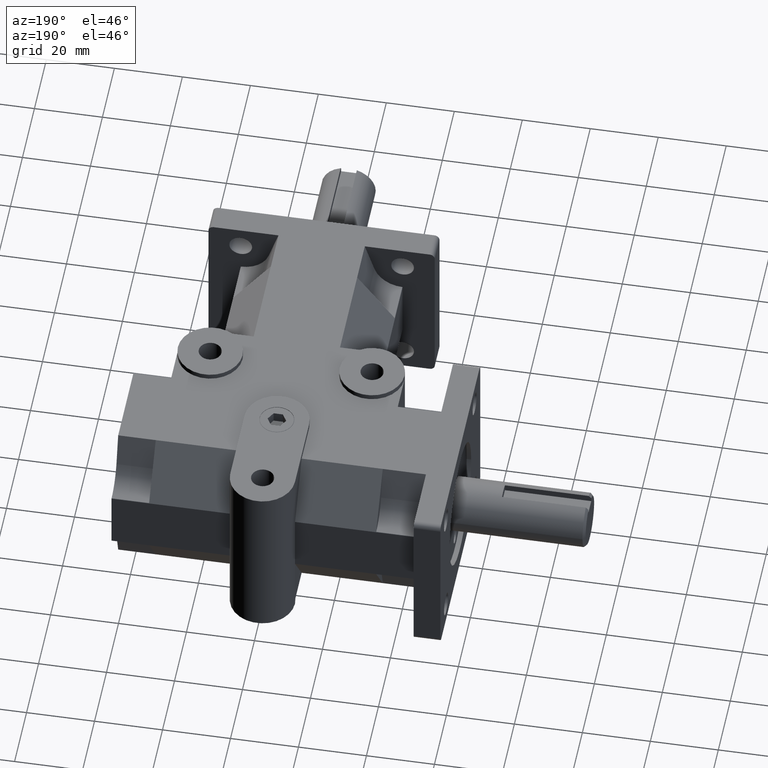
[diagram: clean part render]
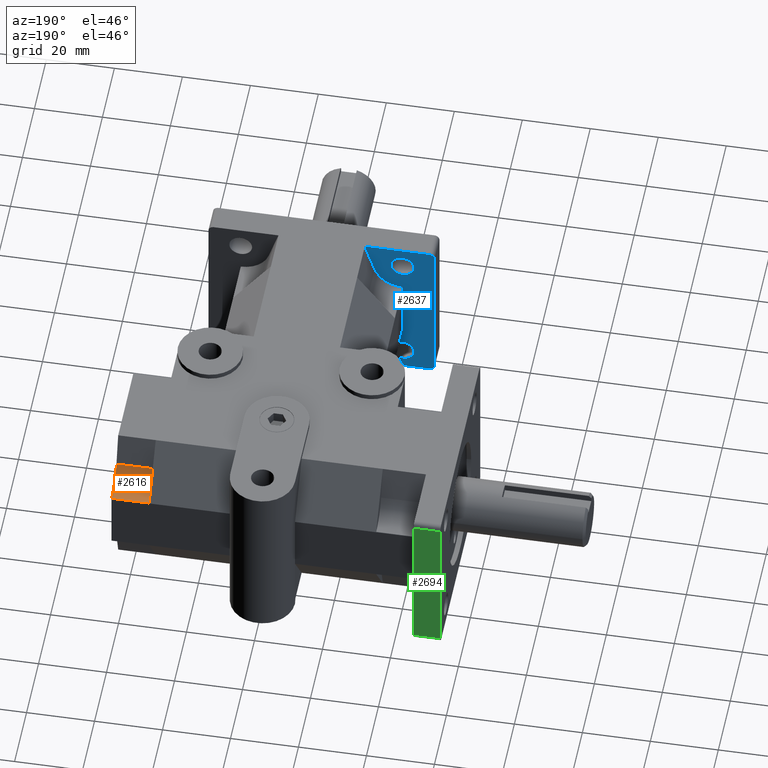
[diagram: same view with three faces highlighted in distinct colors, each labeled with its STEP entity id]
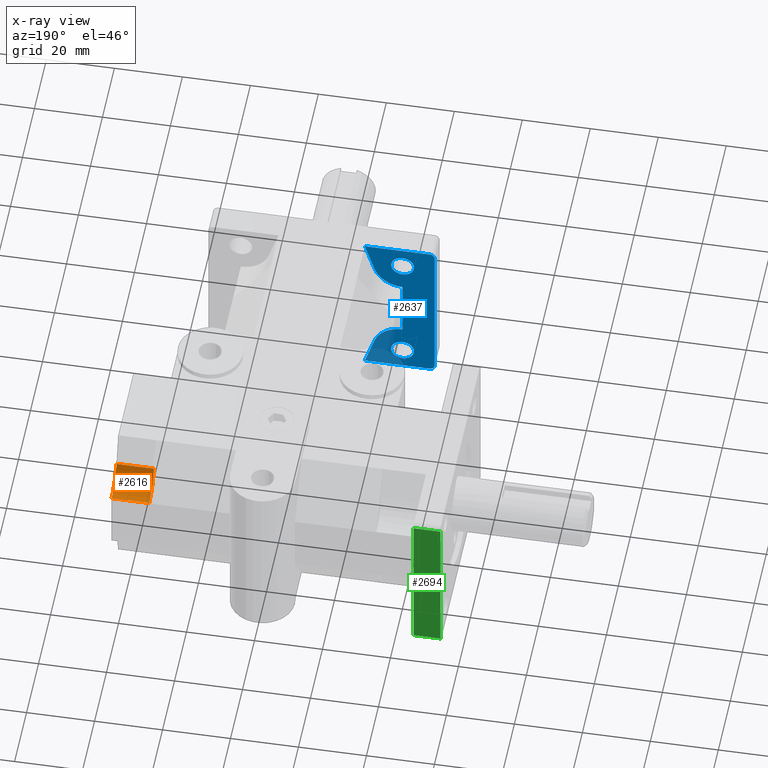
[diagram: x-ray of the same camera — body ghosted, the three highlighted faces saturated]
A machine part, auxiliary view with three faces highlighted in distinct colors.
The next image is the same camera in x-ray (body ghosted, the three faces saturated) — at least one of them is partly hidden behind the body in this view.
Their STEP definitions:

[orange] entity #2616 — the highlighted cylindrical surface (edge-blend (fillet) strip) has radius 8.636 mm, axis along (-1, 0, 0).
#223=FACE_OUTER_BOUND('',#399,.T.);
#399=EDGE_LOOP('',(#2094,#2095,#2096,#2097));
#640=LINE('',#4208,#905);
#641=LINE('',#4211,#906);
#905=VECTOR('',#3402,1.);
#906=VECTOR('',#3405,1.);
#1084=CIRCLE('',#2818,0.34);
#1095=CIRCLE('',#2854,0.34);
#1258=VERTEX_POINT('',#4085);
#1259=VERTEX_POINT('',#4087);
#1293=VERTEX_POINT('',#4207);
#1294=VERTEX_POINT('',#4209);
#1532=EDGE_CURVE('',#1259,#1258,#1084,.T.);
#1593=EDGE_CURVE('',#1293,#1258,#640,.T.);
#1594=EDGE_CURVE('',#1294,#1293,#1095,.T.);
#1595=EDGE_CURVE('',#1259,#1294,#641,.T.);
#2094=ORIENTED_EDGE('',*,*,#1532,.T.);
#2095=ORIENTED_EDGE('',*,*,#1593,.F.);
#2096=ORIENTED_EDGE('',*,*,#1594,.F.);
#2097=ORIENTED_EDGE('',*,*,#1595,.F.);
#2527=CYLINDRICAL_SURFACE('',#2853,0.34);
#2616=ADVANCED_FACE('',(#223),#2527,.F.);
#2818=AXIS2_PLACEMENT_3D('',#4088,#3280,#3281);
#2853=AXIS2_PLACEMENT_3D('',#4206,#3400,#3401);
#2854=AXIS2_PLACEMENT_3D('',#4210,#3403,#3404);
#3280=DIRECTION('center_axis',(1.,0.,0.));
#3281=DIRECTION('ref_axis',(0.,1.,0.));
#3400=DIRECTION('center_axis',(-1.,6.12303176911189E-17,0.));
#3401=DIRECTION('ref_axis',(6.12303176911189E-17,1.,0.));
#3402=DIRECTION('',(1.,-6.12303176911189E-17,0.));
#3403=DIRECTION('center_axis',(1.,-6.12303176911189E-17,0.));
#3404=DIRECTION('ref_axis',(6.12303176911189E-17,1.,0.));
#3405=DIRECTION('',(-1.,6.12303176911189E-17,0.));
#4085=CARTESIAN_POINT('',(1.75,4.18472851878482,0.347511295934889));
#4087=CARTESIAN_POINT('',(1.75,3.86381314304598,0.583448000330468));
#4088=CARTESIAN_POINT('Origin',(1.75,4.1875,0.6875));
#4206=CARTESIAN_POINT('Origin',(1.815,4.1875,0.6875));
#4207=CARTESIAN_POINT('',(1.315,4.18472851878482,0.347511295934889));
#4208=CARTESIAN_POINT('',(1.815,4.18472851878482,0.347511295934889));
#4209=CARTESIAN_POINT('',(1.315,3.86381314304598,0.583448000330468));
#4210=CARTESIAN_POINT('Origin',(1.315,4.1875,0.6875));
#4211=CARTESIAN_POINT('',(1.815,3.86381314304598,0.583448000330468));

[blue] entity #2637 — the highlighted planar face has unit normal (0, 1, 0).
#48=FACE_BOUND('',#421,.T.);
#49=FACE_BOUND('',#422,.T.);
#113=PLANE('',#2882);
#244=FACE_OUTER_BOUND('',#420,.T.);
#420=EDGE_LOOP('',(#2175,#2176,#2177,#2178,#2179,#2180,#2181,#2182,#2183,
#2184,#2185,#2186));
#421=EDGE_LOOP('',(#2187));
#422=EDGE_LOOP('',(#2188));
#555=LINE('',#4002,#820);
#658=LINE('',#4256,#923);
#663=LINE('',#4265,#928);
#672=LINE('',#4289,#937);
#674=LINE('',#4293,#939);
#675=LINE('',#4294,#940);
#676=LINE('',#4296,#941);
#677=LINE('',#4297,#942);
#820=VECTOR('',#3209,1.);
#923=VECTOR('',#3456,1.);
#928=VECTOR('',#3463,1.);
#937=VECTOR('',#3488,0.999999999999999);
#939=VECTOR('',#3494,1.);
#940=VECTOR('',#3495,1.);
#941=VECTOR('',#3496,1.);
#942=VECTOR('',#3497,1.);
#1051=CIRCLE('',#2766,0.06);
#1053=CIRCLE('',#2769,0.06);
#1099=CIRCLE('',#2870,0.34);
#1102=CIRCLE('',#2879,0.34);
#1103=CIRCLE('',#2883,0.1325);
#1104=CIRCLE('',#2884,0.1325);
#1168=VERTEX_POINT('',#3863);
#1169=VERTEX_POINT('',#3865);
#1172=VERTEX_POINT('',#3872);
#1173=VERTEX_POINT('',#3874);
#1226=VERTEX_POINT('',#4001);
#1303=VERTEX_POINT('',#4249);
#1304=VERTEX_POINT('',#4251);
#1305=VERTEX_POINT('',#4255);
#1308=VERTEX_POINT('',#4263);
#1313=VERTEX_POINT('',#4280);
#1315=VERTEX_POINT('',#4284);
#1316=VERTEX_POINT('',#4295);
#1317=VERTEX_POINT('',#4298);
#1318=VERTEX_POINT('',#4300);
#1419=EDGE_CURVE('',#1168,#1169,#1051,.T.);
#1423=EDGE_CURVE('',#1172,#1173,#1053,.T.);
#1490=EDGE_CURVE('',#1226,#1169,#555,.T.);
#1614=EDGE_CURVE('',#1303,#1304,#1099,.T.);
#1616=EDGE_CURVE('',#1304,#1305,#658,.T.);
#1621=EDGE_CURVE('',#1308,#1303,#663,.F.);
#1631=EDGE_CURVE('',#1313,#1315,#1102,.T.);
#1633=EDGE_CURVE('',#1315,#1226,#672,.T.);
#1635=EDGE_CURVE('',#1173,#1168,#674,.T.);
#1636=EDGE_CURVE('',#1172,#1305,#675,.T.);
#1637=EDGE_CURVE('',#1308,#1316,#676,.T.);
#1638=EDGE_CURVE('',#1313,#1316,#677,.F.);
#1639=EDGE_CURVE('',#1317,#1317,#1103,.T.);
#1640=EDGE_CURVE('',#1318,#1318,#1104,.T.);
#2175=ORIENTED_EDGE('',*,*,#1419,.F.);
#2176=ORIENTED_EDGE('',*,*,#1635,.F.);
#2177=ORIENTED_EDGE('',*,*,#1423,.F.);
#2178=ORIENTED_EDGE('',*,*,#1636,.T.);
#2179=ORIENTED_EDGE('',*,*,#1616,.F.);
#2180=ORIENTED_EDGE('',*,*,#1614,.F.);
#2181=ORIENTED_EDGE('',*,*,#1621,.F.);
#2182=ORIENTED_EDGE('',*,*,#1637,.T.);
#2183=ORIENTED_EDGE('',*,*,#1638,.F.);
#2184=ORIENTED_EDGE('',*,*,#1631,.T.);
#2185=ORIENTED_EDGE('',*,*,#1633,.T.);
#2186=ORIENTED_EDGE('',*,*,#1490,.T.);
#2187=ORIENTED_EDGE('',*,*,#1639,.T.);
#2188=ORIENTED_EDGE('',*,*,#1640,.T.);
#2637=ADVANCED_FACE('',(#244,#48,#49),#113,.T.);
#2766=AXIS2_PLACEMENT_3D('',#3866,#3096,#3097);
#2769=AXIS2_PLACEMENT_3D('',#3875,#3104,#3105);
#2870=AXIS2_PLACEMENT_3D('',#4252,#3451,#3452);
#2879=AXIS2_PLACEMENT_3D('',#4286,#3483,#3484);
#2882=AXIS2_PLACEMENT_3D('',#4292,#3492,#3493);
#2883=AXIS2_PLACEMENT_3D('',#4299,#3498,#3499);
#2884=AXIS2_PLACEMENT_3D('',#4301,#3500,#3501);
#3096=DIRECTION('center_axis',(0.,-1.,0.));
#3097=DIRECTION('ref_axis',(-0.707106781186548,0.,-0.707106781186548));
#3104=DIRECTION('center_axis',(0.,-1.,0.));
#3105=DIRECTION('ref_axis',(-0.707106781186548,0.,0.707106781186548));
#3209=DIRECTION('',(-1.,0.,0.));
#3451=DIRECTION('center_axis',(0.,-1.,0.));
#3452=DIRECTION('ref_axis',(1.,0.,0.));
#3456=DIRECTION('',(0.306035293145686,0.,0.95202016751182));
#3463=DIRECTION('',(-0.59319903804985,0.,-0.805055837353368));
#3483=DIRECTION('center_axis',(0.,1.,0.));
#3484=DIRECTION('ref_axis',(1.,0.,0.));
#3488=DIRECTION('',(0.306035293145685,0.,-0.952020167511821));
#3492=DIRECTION('center_axis',(0.,1.,0.));
#3493=DIRECTION('ref_axis',(0.,0.,-1.));
#3494=DIRECTION('',(0.,0.,-1.));
#3495=DIRECTION('',(1.,0.,0.));
#3496=DIRECTION('',(0.,0.,-1.));
#3497=DIRECTION('',(0.59319903804985,0.,-0.805055837353368));
#3498=DIRECTION('center_axis',(0.,-1.,0.));
#3499=DIRECTION('ref_axis',(1.,0.,0.));
#3500=DIRECTION('center_axis',(0.,-1.,0.));
#3501=DIRECTION('ref_axis',(1.,0.,0.));
#3863=CARTESIAN_POINT('',(-1.31,0.31,-0.8775));
#3865=CARTESIAN_POINT('',(-1.25,0.31,-0.9375));
#3866=CARTESIAN_POINT('Origin',(-1.25,0.31,-0.8775));
#3872=CARTESIAN_POINT('',(-1.25,0.31,0.9375));
#3874=CARTESIAN_POINT('',(-1.31,0.31,0.8775));
#3875=CARTESIAN_POINT('Origin',(-1.25,0.31,0.8775));
#4001=CARTESIAN_POINT('',(-0.5,0.31,-0.9375));
#4002=CARTESIAN_POINT('',(-1.31,0.31,-0.9375));
#4249=CARTESIAN_POINT('',(-0.934728518784819,0.31,0.347511295934889));
#4251=CARTESIAN_POINT('',(-0.613813143045981,0.31,0.583448000330467));
#4252=CARTESIAN_POINT('Origin',(-0.9375,0.31,0.6875));
#4255=CARTESIAN_POINT('',(-0.5,0.31,0.9375));
#4256=CARTESIAN_POINT('',(-0.613813143045981,0.31,0.583448000330467));
#4263=CARTESIAN_POINT('',(-0.9375,0.31,0.34375));
#4265=CARTESIAN_POINT('',(-0.910205341113106,0.31,0.380792751346499));
#4280=CARTESIAN_POINT('',(-0.934728518784819,0.31,-0.347511295934889));
#4284=CARTESIAN_POINT('',(-0.613813143045981,0.31,-0.583448000330467));
#4286=CARTESIAN_POINT('Origin',(-0.9375,0.31,-0.6875));
#4289=CARTESIAN_POINT('',(-0.613813143045981,0.31,-0.583448000330467));
#4292=CARTESIAN_POINT('Origin',(-0.9375,0.31,0.));
#4293=CARTESIAN_POINT('',(-1.31,0.31,0.));
#4294=CARTESIAN_POINT('',(-0.46875,0.31,0.9375));
#4295=CARTESIAN_POINT('',(-0.9375,0.31,-0.34375));
#4296=CARTESIAN_POINT('',(-0.9375,0.31,0.));
#4297=CARTESIAN_POINT('',(-0.910205341113106,0.31,-0.380792751346499));
#4298=CARTESIAN_POINT('',(-1.07,0.31,-0.6875));
#4299=CARTESIAN_POINT('Origin',(-0.9375,0.31,-0.6875));
#4300=CARTESIAN_POINT('',(-1.07,0.31,0.6875));
#4301=CARTESIAN_POINT('Origin',(-0.9375,0.31,0.6875));

[green] entity #2694 — the highlighted planar face has unit normal (0, 1, 0).
#151=PLANE('',#2966);
#301=FACE_OUTER_BOUND('',#486,.T.);
#486=EDGE_LOOP('',(#2479,#2480,#2481,#2482));
#501=LINE('',#3828,#766);
#503=LINE('',#3837,#768);
#520=LINE('',#3899,#785);
#633=LINE('',#4191,#898);
#766=VECTOR('',#3063,1.);
#768=VECTOR('',#3071,1.);
#785=VECTOR('',#3128,1.);
#898=VECTOR('',#3385,1.);
#1151=VERTEX_POINT('',#3825);
#1152=VERTEX_POINT('',#3827);
#1155=VERTEX_POINT('',#3834);
#1156=VERTEX_POINT('',#3836);
#1402=EDGE_CURVE('',#1151,#1152,#501,.T.);
#1406=EDGE_CURVE('',#1155,#1156,#503,.T.);
#1436=EDGE_CURVE('',#1156,#1151,#520,.T.);
#1584=EDGE_CURVE('',#1155,#1152,#633,.T.);
#2479=ORIENTED_EDGE('',*,*,#1402,.F.);
#2480=ORIENTED_EDGE('',*,*,#1436,.F.);
#2481=ORIENTED_EDGE('',*,*,#1406,.F.);
#2482=ORIENTED_EDGE('',*,*,#1584,.T.);
#2694=ADVANCED_FACE('',(#301),#151,.T.);
#2966=AXIS2_PLACEMENT_3D('',#4527,#3743,#3744);
#3063=DIRECTION('',(1.,0.,0.));
#3071=DIRECTION('',(-1.,0.,0.));
#3128=DIRECTION('',(0.,0.,-1.));
#3385=DIRECTION('',(0.,0.,-1.));
#3743=DIRECTION('center_axis',(0.,1.,0.));
#3744=DIRECTION('ref_axis',(0.,0.,-1.));
#3825=CARTESIAN_POINT('',(-2.125,4.56,-0.8775));
#3827=CARTESIAN_POINT('',(-1.815,4.56,-0.8775));
#3828=CARTESIAN_POINT('',(-0.9075,4.56,-0.8775));
#3834=CARTESIAN_POINT('',(-1.815,4.56,0.8775));
#3836=CARTESIAN_POINT('',(-2.125,4.56,0.8775));
#3837=CARTESIAN_POINT('',(-0.9075,4.56,0.8775));
#3899=CARTESIAN_POINT('',(-2.125,4.56,0.));
#4191=CARTESIAN_POINT('',(-1.815,4.56,0.));
#4527=CARTESIAN_POINT('Origin',(-1.815,4.56,0.));